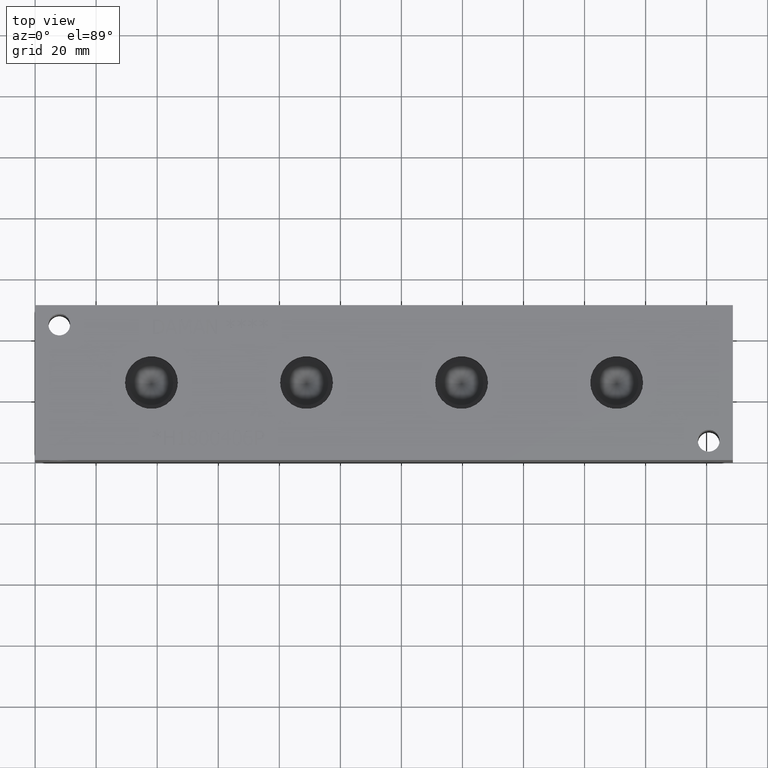
[diagram: clean part render]
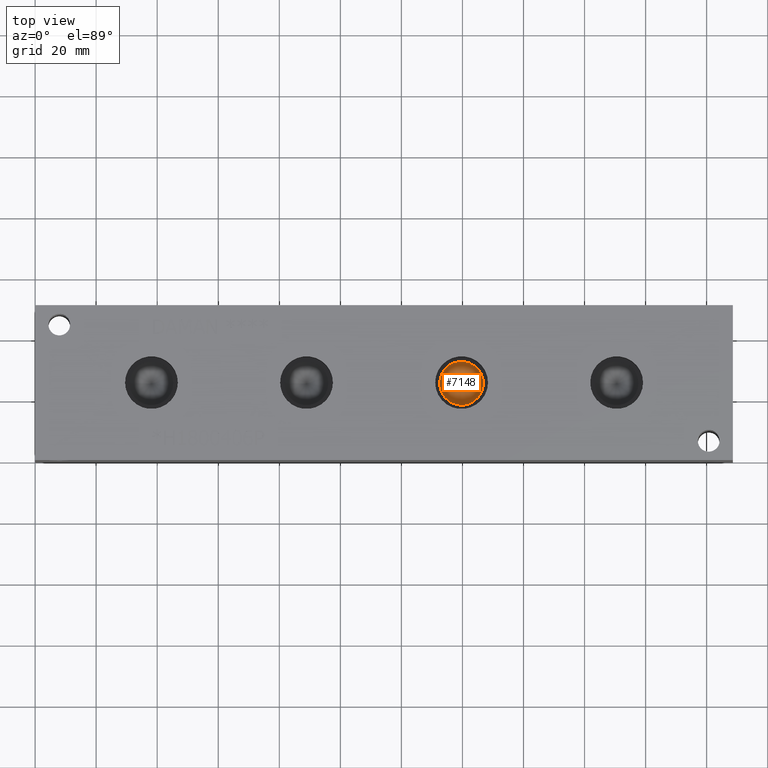
[diagram: same view with one face highlighted and labeled with its STEP entity id]
A machine part, top view. The second image highlights one B-rep face of the part: STEP entity #7148.
In plain terms, the highlighted conical surface has half-angle 60 deg.
Its self-contained STEP definition (entity closure, byte-faithful):
#54=CONICAL_SURFACE('',#7491,3.57505,1.0471975511966);
#108=CIRCLE('',#7492,7.1501);
#109=CIRCLE('',#7493,7.1501);
#769=FACE_OUTER_BOUND('',#1173,.T.);
#1173=EDGE_LOOP('',(#6272,#6273,#6274,#6275));
#1903=LINE('',#12054,#2611);
#2611=VECTOR('',#8841,3.57505);
#3439=VERTEX_POINT('',#12050);
#3440=VERTEX_POINT('',#12051);
#3441=VERTEX_POINT('',#12053);
#4403=EDGE_CURVE('',#3439,#3440,#108,.T.);
#4404=EDGE_CURVE('',#3440,#3441,#1903,.T.);
#4405=EDGE_CURVE('',#3440,#3439,#109,.T.);
#6272=ORIENTED_EDGE('',*,*,#4403,.T.);
#6273=ORIENTED_EDGE('',*,*,#4404,.T.);
#6274=ORIENTED_EDGE('',*,*,#4404,.F.);
#6275=ORIENTED_EDGE('',*,*,#4405,.T.);
#7148=ADVANCED_FACE('',(#769),#54,.F.);
#7491=AXIS2_PLACEMENT_3D('',#12049,#8837,#8838);
#7492=AXIS2_PLACEMENT_3D('',#12052,#8839,#8840);
#7493=AXIS2_PLACEMENT_3D('',#12055,#8842,#8843);
#8837=DIRECTION('center_axis',(0.,0.,1.));
#8838=DIRECTION('ref_axis',(1.,0.,0.));
#8839=DIRECTION('center_axis',(0.,0.,1.));
#8840=DIRECTION('ref_axis',(1.,0.,0.));
#8841=DIRECTION('',(0.866025403784439,1.06057523872491E-16,-0.5));
#8842=DIRECTION('center_axis',(0.,0.,1.));
#8843=DIRECTION('ref_axis',(1.,0.,0.));
#12049=CARTESIAN_POINT('Origin',(139.7,25.4,36.5883339201336));
#12050=CARTESIAN_POINT('',(146.8501,25.4,38.65239));
#12051=CARTESIAN_POINT('',(132.5499,25.4,38.65239));
#12052=CARTESIAN_POINT('Origin',(139.7,25.4,38.65239));
#12053=CARTESIAN_POINT('',(139.7,25.4,34.5242778402673));
#12054=CARTESIAN_POINT('',(136.12495,25.4,36.5883339201336));
#12055=CARTESIAN_POINT('Origin',(139.7,25.4,38.65239));